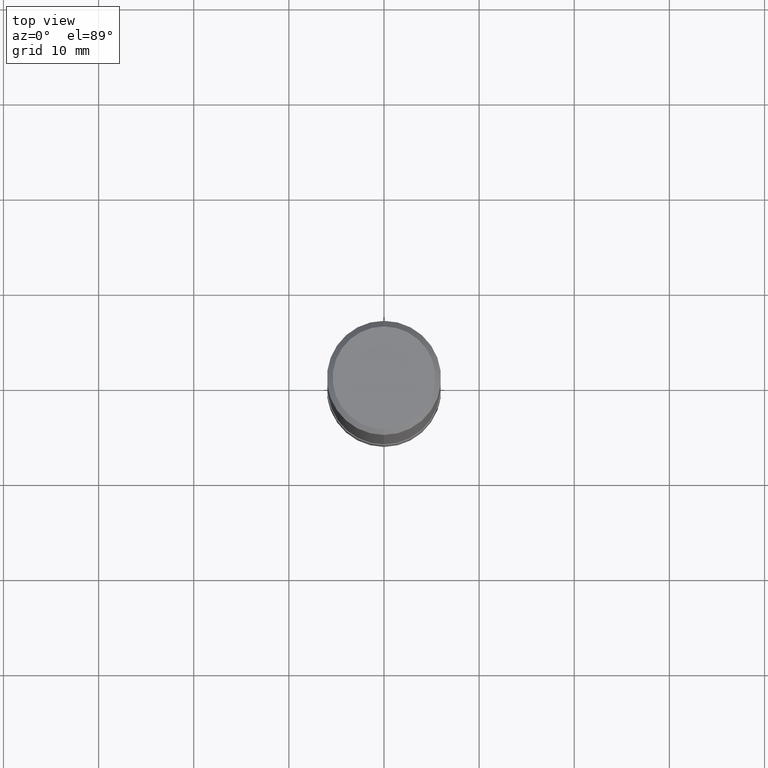
[diagram: clean part render]
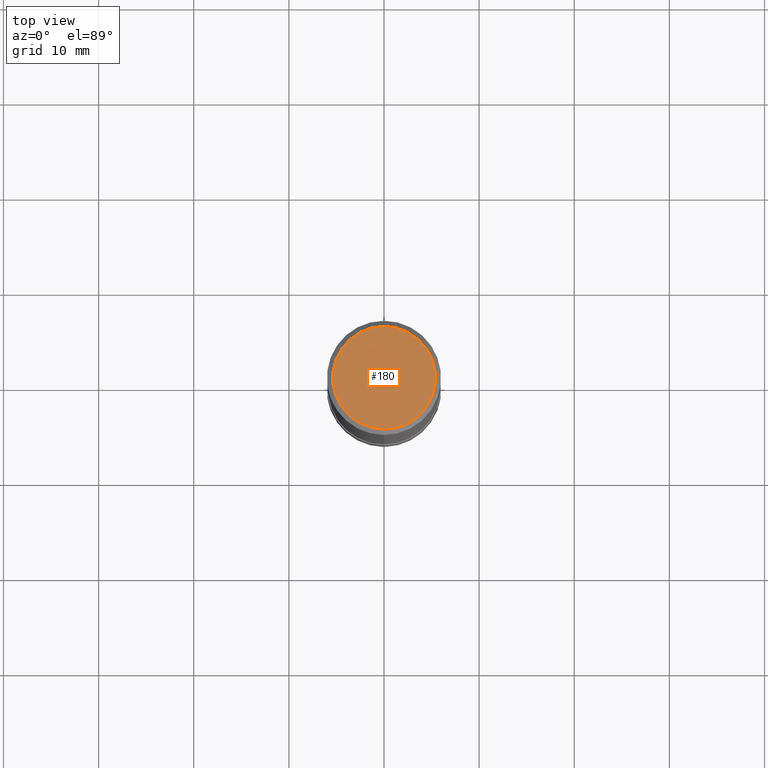
[diagram: same view with one face highlighted and labeled with its STEP entity id]
A machine part, top view. The second image highlights one B-rep face of the part: STEP entity #180.
In plain terms, the highlighted planar face has unit normal (-0, 0, 1).
Its self-contained STEP definition (entity closure, byte-faithful):
#118=VERTEX_POINT('',#259);
#128=EDGE_CURVE('',#118,#204,#271,.T.);
#130=EDGE_CURVE('',#204,#118,#273,.T.);
#180=ADVANCED_FACE('',(#331),#332,.T.);
#204=VERTEX_POINT('',#357);
#259=CARTESIAN_POINT('',(6.61287431064084E-016,-5.4,0.0));
#271=CIRCLE('',#425,5.4);
#273=CIRCLE('',#428,5.4);
#331=FACE_OUTER_BOUND('',#500,.T.);
#332=PLANE('',#501);
#357=CARTESIAN_POINT('',(0.0,5.4,0.0));
#425=AXIS2_PLACEMENT_3D('',#594,#595,#596);
#428=AXIS2_PLACEMENT_3D('',#597,#598,#599);
#500=EDGE_LOOP('',(#685,#686));
#501=AXIS2_PLACEMENT_3D('',#687,#688,#689);
#594=CARTESIAN_POINT('',(0.0,0.0,0.0));
#595=DIRECTION('',(0.0,0.0,-1.0));
#596=DIRECTION('',(0.0,1.0,0.0));
#597=CARTESIAN_POINT('',(0.0,0.0,0.0));
#598=DIRECTION('',(0.0,0.0,-1.0));
#599=DIRECTION('',(0.0,1.0,0.0));
#685=ORIENTED_EDGE('',*,*,#130,.F.);
#686=ORIENTED_EDGE('',*,*,#128,.F.);
#687=CARTESIAN_POINT('',(0.0,2.7,0.0));
#688=DIRECTION('',(-0.0,0.0,1.0));
#689=DIRECTION('',(0.0,-1.0,0.0));